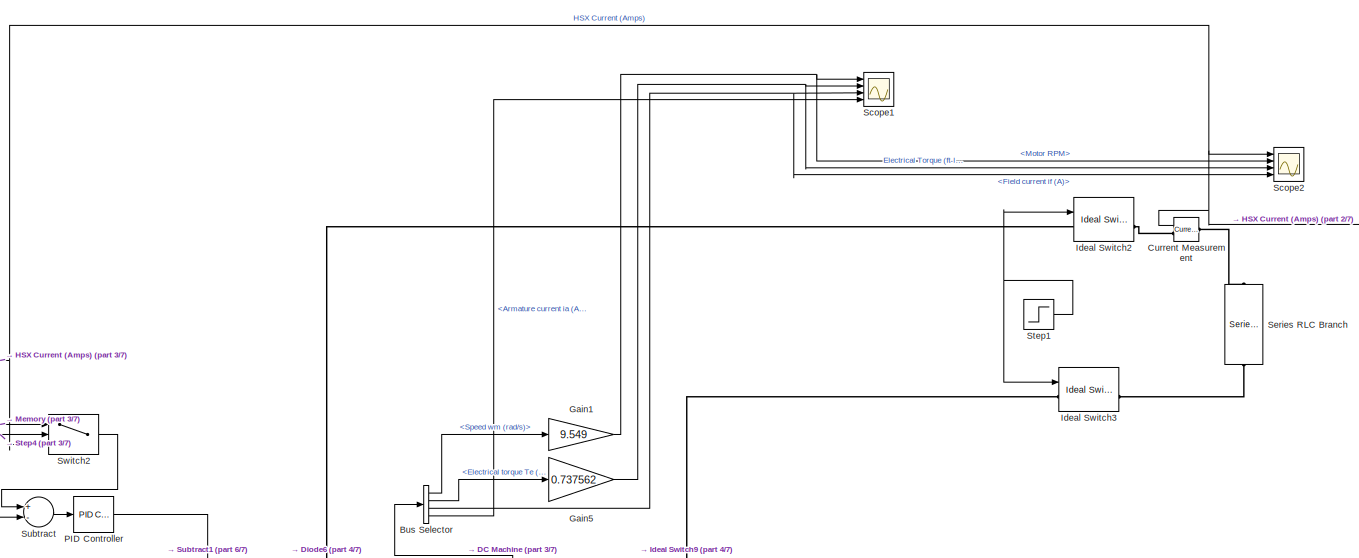
[diagram: root canvas - part 1/7, top center region]
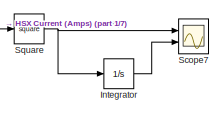
[diagram: root canvas - part 2/7, top right region]
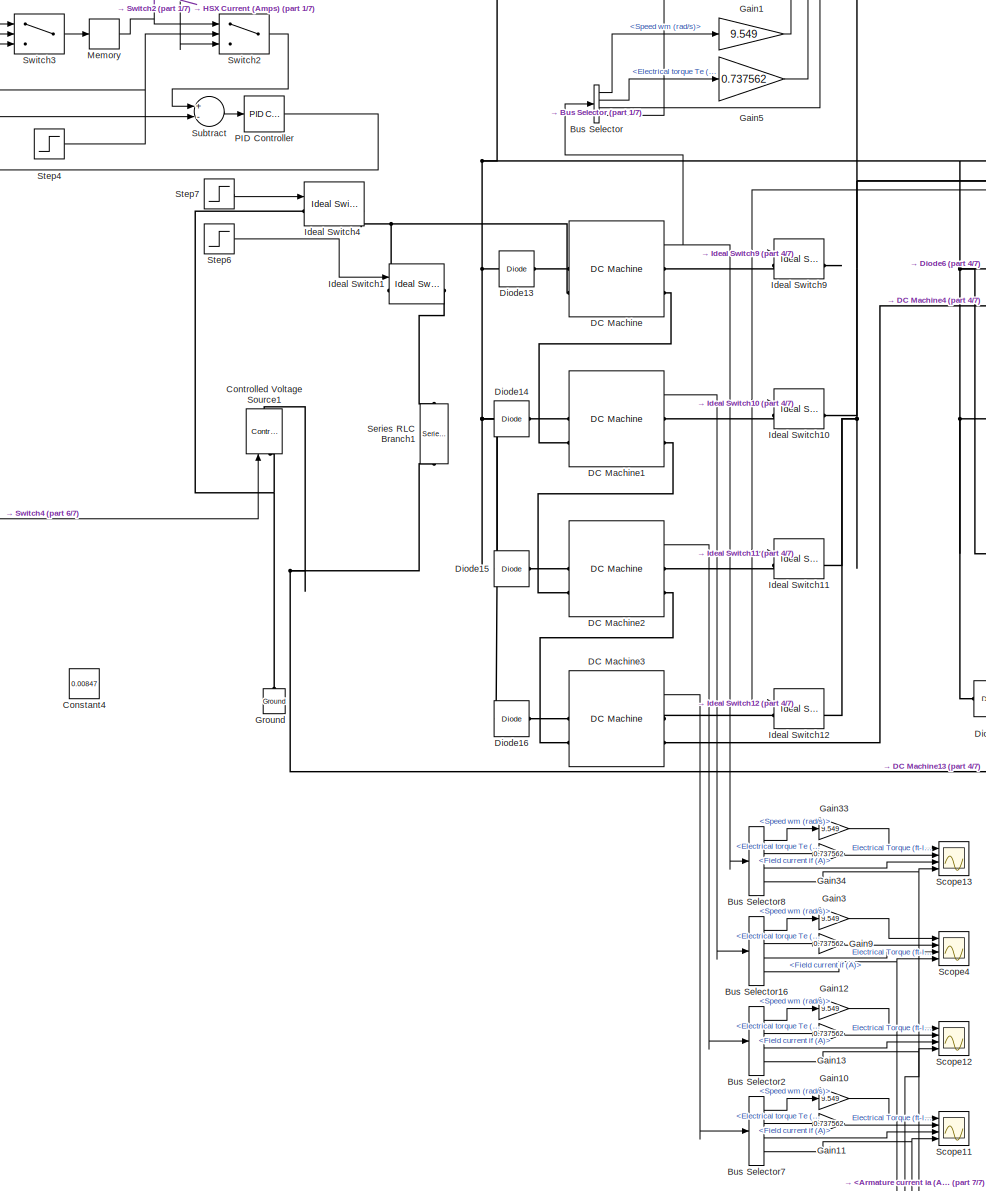
[diagram: root canvas - part 3/7, central region]
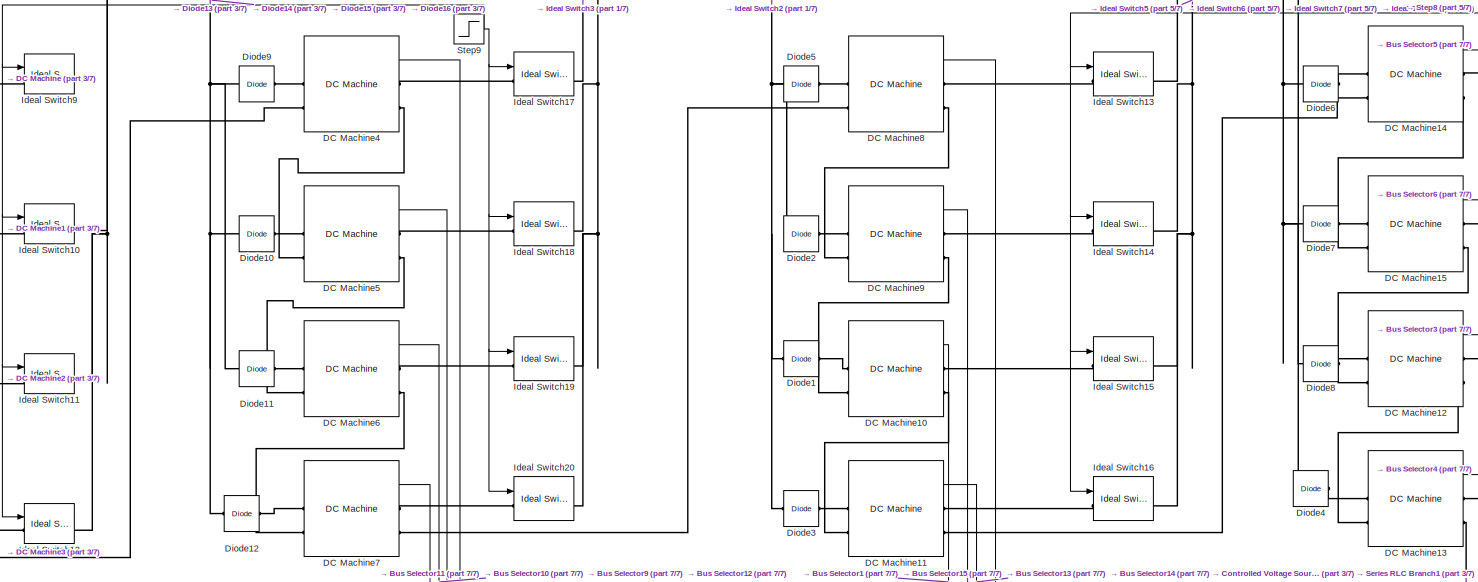
[diagram: root canvas - part 4/7, central region]
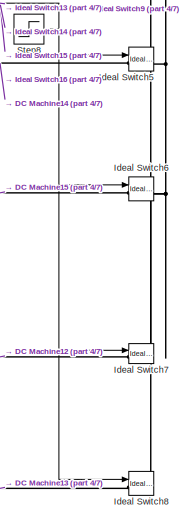
[diagram: root canvas - part 5/7, middle right region]
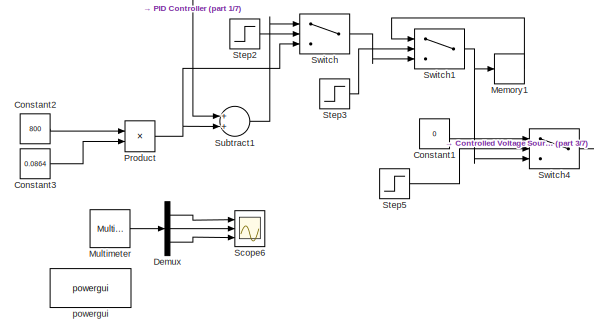
[diagram: root canvas - part 6/7, middle left region]
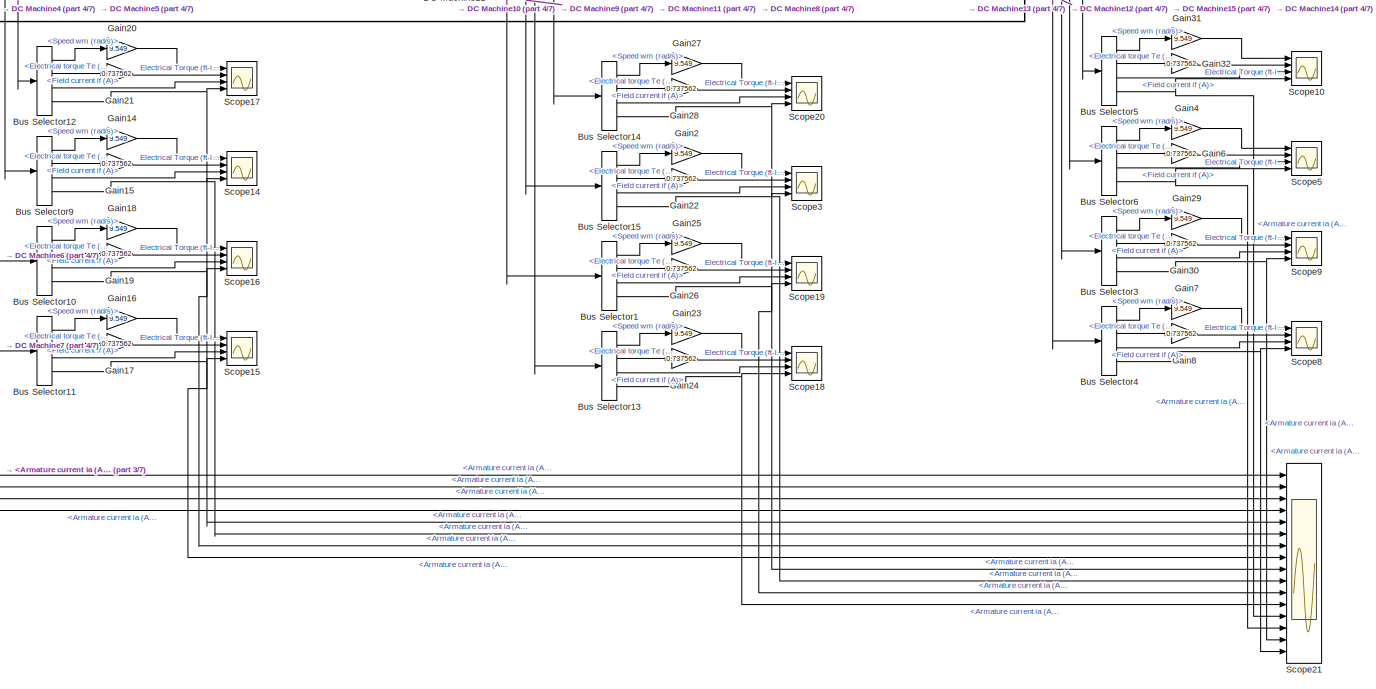
[diagram: root canvas - part 7/7, bottom right region]
MODEL slx_19354a791e89
KIND model
CONFIG AbsTol = auto
CONFIG EnableMultiTasking = off
CONFIG FixedStep = auto
CONFIG MaxStep = auto
CONFIG MinStep = auto
CONFIG RelTol = 1e-3
CONFIG SampleTimeConstraint = Unconstrained
CONFIG Solver = VariableStepAuto
CONFIG SolverName = VariableStepAuto
CONFIG StartTime = 0.0
CONFIG StopTime = 20
WORKSPACE source: mxarray member
WORKSPACE Laf = 0.00847
WORKSPACE Laf_2 = 0.00844
WORKSPACE Rarm = 0.0096
WORKSPACE angular_vel = 163.55
WORKSPACE angular_vel_1 = 175.405
WORKSPACE angular_vel_10 = 168.703
WORKSPACE angular_vel_11 = 168.598
WORKSPACE angular_vel_12 = 167.865
WORKSPACE angular_vel_13 = 167.132
WORKSPACE angular_vel_14 = 166.923
WORKSPACE angular_vel_15 = 165.666
WORKSPACE angular_vel_16 = 164.41
WORKSPACE angular_vel_2 = 173.625
WORKSPACE angular_vel_3 = 172.787
WORKSPACE angular_vel_4 = 170.902
WORKSPACE angular_vel_5 = 170.902
WORKSPACE angular_vel_6 = 169.96
WORKSPACE angular_vel_7 = 169.855
WORKSPACE angular_vel_8 = 169.122
BLOCK [BusSelector] Bus Selector
  OutputAsBus = off
  OutputSignals = Speed wm (rad/s),Electrical torque Te (n m),Field current if (A),Armature current ia (A)
  Ports = [1, 4]
BLOCK [BusSelector] Bus Selector1
  OutputAsBus = off
  OutputSignals = Speed wm (rad/s),Electrical torque Te (n m),Field current if (A),Armature current ia (A)
  Ports = [1, 4]
BLOCK [BusSelector] Bus Selector10
  OutputAsBus = off
  OutputSignals = Speed wm (rad/s),Electrical torque Te (n m),Field current if (A),Armature current ia (A)
  Ports = [1, 4]
BLOCK [BusSelector] Bus Selector11
  OutputAsBus = off
  OutputSignals = Speed wm (rad/s),Electrical torque Te (n m),Field current if (A),Armature current ia (A)
  Ports = [1, 4]
BLOCK [BusSelector] Bus Selector12
  OutputAsBus = off
  OutputSignals = Speed wm (rad/s),Electrical torque Te (n m),Field current if (A),Armature current ia (A)
  Ports = [1, 4]
BLOCK [BusSelector] Bus Selector13
  OutputAsBus = off
  OutputSignals = Speed wm (rad/s),Electrical torque Te (n m),Field current if (A),Armature current ia (A)
  Ports = [1, 4]
BLOCK [BusSelector] Bus Selector14
  OutputAsBus = off
  OutputSignals = Speed wm (rad/s),Electrical torque Te (n m),Field current if (A),Armature current ia (A)
  Ports = [1, 4]
BLOCK [BusSelector] Bus Selector15
  OutputAsBus = off
  OutputSignals = Speed wm (rad/s),Electrical torque Te (n m),Field current if (A),Armature current ia (A)
  Ports = [1, 4]
BLOCK [BusSelector] Bus Selector16
  OutputAsBus = off
  OutputSignals = Speed wm (rad/s),Electrical torque Te (n m),Field current if (A),Armature current ia (A)
  Ports = [1, 4]
BLOCK [BusSelector] Bus Selector2
  OutputAsBus = off
  OutputSignals = Speed wm (rad/s),Electrical torque Te (n m),Field current if (A),Armature current ia (A)
  Ports = [1, 4]
BLOCK [BusSelector] Bus Selector3
  OutputAsBus = off
  OutputSignals = Speed wm (rad/s),Electrical torque Te (n m),Field current if (A),Armature current ia (A)
  Ports = [1, 4]
BLOCK [BusSelector] Bus Selector4
  OutputAsBus = off
  OutputSignals = Speed wm (rad/s),Electrical torque Te (n m),Field current if (A),Armature current ia (A)
  Ports = [1, 4]
BLOCK [BusSelector] Bus Selector5
  OutputAsBus = off
  OutputSignals = Speed wm (rad/s),Electrical torque Te (n m),Field current if (A),Armature current ia (A)
  Ports = [1, 4]
BLOCK [BusSelector] Bus Selector6
  OutputAsBus = off
  OutputSignals = Speed wm (rad/s),Electrical torque Te (n m),Field current if (A),Armature current ia (A)
  Ports = [1, 4]
BLOCK [BusSelector] Bus Selector7
  OutputAsBus = off
  OutputSignals = Speed wm (rad/s),Electrical torque Te (n m),Field current if (A),Armature current ia (A)
  Ports = [1, 4]
BLOCK [BusSelector] Bus Selector8
  OutputAsBus = off
  OutputSignals = Speed wm (rad/s),Electrical torque Te (n m),Field current if (A),Armature current ia (A)
  Ports = [1, 4]
BLOCK [BusSelector] Bus Selector9
  OutputAsBus = off
  OutputSignals = Speed wm (rad/s),Electrical torque Te (n m),Field current if (A),Armature current ia (A)
  Ports = [1, 4]
BLOCK [Constant] Constant1
  Value = 0
BLOCK [Constant] Constant2
  Value = 800
BLOCK [Constant] Constant3
  Value = 0.0864
BLOCK [Constant] Constant4
  Value = 0.00847
BLOCK [Reference] Controlled Voltage Source1  REF=powerlib/Electrical
Sources/Controlled Voltage Source
  Ports = [1, 0, 0, 0, 0, 1, 1]
  SourceBlock = powerlib/Electrical\nSources/Controlled Voltage Source
  SourceProductBaseCode = PS
  SourceProductName = Simscape Electrical
  SourceType = Controlled Voltage Source
BLOCK [Reference] Current Measurement  REF=powerlib/Measurements/Current Measurement
  Ports = [0, 1, 0, 0, 0, 1, 1]
  SourceBlock = powerlib/Measurements/Current Measurement
  SourceProductBaseCode = PS
  SourceProductName = Simscape Electrical
  SourceType = Current Measurement
  UserDataPersistent = on
BLOCK [Reference] DC Machine  REF=powerlib/Machines/DC Machine
  Ports = [1, 1, 0, 0, 0, 2, 2]
  SourceBlock = powerlib/Machines/DC Machine
  SourceProductBaseCode = PS
  SourceProductName = Simscape Electrical
  SourceType = DC machine
BLOCK [Reference] DC Machine1  REF=powerlib/Machines/DC Machine
  Ports = [1, 1, 0, 0, 0, 2, 2]
  SourceBlock = powerlib/Machines/DC Machine
  SourceProductBaseCode = PS
  SourceProductName = Simscape Electrical
  SourceType = DC machine
BLOCK [Reference] DC Machine10  REF=powerlib/Machines/DC Machine
  Ports = [1, 1, 0, 0, 0, 2, 2]
  SourceBlock = powerlib/Machines/DC Machine
  SourceProductBaseCode = PS
  SourceProductName = Simscape Electrical
  SourceType = DC machine
BLOCK [Reference] DC Machine11  REF=powerlib/Machines/DC Machine
  Ports = [1, 1, 0, 0, 0, 2, 2]
  SourceBlock = powerlib/Machines/DC Machine
  SourceProductBaseCode = PS
  SourceProductName = Simscape Electrical
  SourceType = DC machine
BLOCK [Reference] DC Machine12  REF=powerlib/Machines/DC Machine
  Ports = [1, 1, 0, 0, 0, 2, 2]
  SourceBlock = powerlib/Machines/DC Machine
  SourceProductBaseCode = PS
  SourceProductName = Simscape Electrical
  SourceType = DC machine
BLOCK [Reference] DC Machine13  REF=powerlib/Machines/DC Machine
  Ports = [1, 1, 0, 0, 0, 2, 2]
  SourceBlock = powerlib/Machines/DC Machine
  SourceProductBaseCode = PS
  SourceProductName = Simscape Electrical
  SourceType = DC machine
BLOCK [Reference] DC Machine14  REF=powerlib/Machines/DC Machine
  Ports = [1, 1, 0, 0, 0, 2, 2]
  SourceBlock = powerlib/Machines/DC Machine
  SourceProductBaseCode = PS
  SourceProductName = Simscape Electrical
  SourceType = DC machine
BLOCK [Reference] DC Machine15  REF=powerlib/Machines/DC Machine
  Ports = [1, 1, 0, 0, 0, 2, 2]
  SourceBlock = powerlib/Machines/DC Machine
  SourceProductBaseCode = PS
  SourceProductName = Simscape Electrical
  SourceType = DC machine
BLOCK [Reference] DC Machine2  REF=powerlib/Machines/DC Machine
  Ports = [1, 1, 0, 0, 0, 2, 2]
  SourceBlock = powerlib/Machines/DC Machine
  SourceProductBaseCode = PS
  SourceProductName = Simscape Electrical
  SourceType = DC machine
BLOCK [Reference] DC Machine3  REF=powerlib/Machines/DC Machine
  Ports = [1, 1, 0, 0, 0, 2, 2]
  SourceBlock = powerlib/Machines/DC Machine
  SourceProductBaseCode = PS
  SourceProductName = Simscape Electrical
  SourceType = DC machine
BLOCK [Reference] DC Machine4  REF=powerlib/Machines/DC Machine
  Ports = [1, 1, 0, 0, 0, 2, 2]
  SourceBlock = powerlib/Machines/DC Machine
  SourceProductBaseCode = PS
  SourceProductName = Simscape Electrical
  SourceType = DC machine
BLOCK [Reference] DC Machine5  REF=powerlib/Machines/DC Machine
  Ports = [1, 1, 0, 0, 0, 2, 2]
  SourceBlock = powerlib/Machines/DC Machine
  SourceProductBaseCode = PS
  SourceProductName = Simscape Electrical
  SourceType = DC machine
BLOCK [Reference] DC Machine6  REF=powerlib/Machines/DC Machine
  Ports = [1, 1, 0, 0, 0, 2, 2]
  SourceBlock = powerlib/Machines/DC Machine
  SourceProductBaseCode = PS
  SourceProductName = Simscape Electrical
  SourceType = DC machine
BLOCK [Reference] DC Machine7  REF=powerlib/Machines/DC Machine
  Ports = [1, 1, 0, 0, 0, 2, 2]
  SourceBlock = powerlib/Machines/DC Machine
  SourceProductBaseCode = PS
  SourceProductName = Simscape Electrical
  SourceType = DC machine
BLOCK [Reference] DC Machine8  REF=powerlib/Machines/DC Machine
  Ports = [1, 1, 0, 0, 0, 2, 2]
  SourceBlock = powerlib/Machines/DC Machine
  SourceProductBaseCode = PS
  SourceProductName = Simscape Electrical
  SourceType = DC machine
BLOCK [Reference] DC Machine9  REF=powerlib/Machines/DC Machine
  Ports = [1, 1, 0, 0, 0, 2, 2]
  SourceBlock = powerlib/Machines/DC Machine
  SourceProductBaseCode = PS
  SourceProductName = Simscape Electrical
  SourceType = DC machine
BLOCK [Demux] Demux
  DisplayOption = bar
  Outputs = 3
  Ports = [1, 3]
BLOCK [Reference] Diode1  REF=powerlib/Power
Electronics/Diode
  Ports = [0, 0, 0, 0, 0, 1, 1]
  SourceBlock = powerlib/Power\nElectronics/Diode
  SourceProductBaseCode = PS
  SourceProductName = Simscape Electrical
  SourceType = Diode
BLOCK [Reference] Diode10  REF=powerlib/Power
Electronics/Diode
  Ports = [0, 0, 0, 0, 0, 1, 1]
  SourceBlock = powerlib/Power\nElectronics/Diode
  SourceProductBaseCode = PS
  SourceProductName = Simscape Electrical
  SourceType = Diode
BLOCK [Reference] Diode11  REF=powerlib/Power
Electronics/Diode
  Ports = [0, 0, 0, 0, 0, 1, 1]
  SourceBlock = powerlib/Power\nElectronics/Diode
  SourceProductBaseCode = PS
  SourceProductName = Simscape Electrical
  SourceType = Diode
BLOCK [Reference] Diode12  REF=powerlib/Power
Electronics/Diode
  Ports = [0, 0, 0, 0, 0, 1, 1]
  SourceBlock = powerlib/Power\nElectronics/Diode
  SourceProductBaseCode = PS
  SourceProductName = Simscape Electrical
  SourceType = Diode
BLOCK [Reference] Diode13  REF=powerlib/Power
Electronics/Diode
  Ports = [0, 0, 0, 0, 0, 1, 1]
  SourceBlock = powerlib/Power\nElectronics/Diode
  SourceProductBaseCode = PS
  SourceProductName = Simscape Electrical
  SourceType = Diode
BLOCK [Reference] Diode14  REF=powerlib/Power
Electronics/Diode
  Ports = [0, 0, 0, 0, 0, 1, 1]
  SourceBlock = powerlib/Power\nElectronics/Diode
  SourceProductBaseCode = PS
  SourceProductName = Simscape Electrical
  SourceType = Diode
BLOCK [Reference] Diode15  REF=powerlib/Power
Electronics/Diode
  Ports = [0, 0, 0, 0, 0, 1, 1]
  SourceBlock = powerlib/Power\nElectronics/Diode
  SourceProductBaseCode = PS
  SourceProductName = Simscape Electrical
  SourceType = Diode
BLOCK [Reference] Diode16  REF=powerlib/Power
Electronics/Diode
  Ports = [0, 0, 0, 0, 0, 1, 1]
  SourceBlock = powerlib/Power\nElectronics/Diode
  SourceProductBaseCode = PS
  SourceProductName = Simscape Electrical
  SourceType = Diode
BLOCK [Reference] Diode2  REF=powerlib/Power
Electronics/Diode
  Ports = [0, 0, 0, 0, 0, 1, 1]
  SourceBlock = powerlib/Power\nElectronics/Diode
  SourceProductBaseCode = PS
  SourceProductName = Simscape Electrical
  SourceType = Diode
BLOCK [Reference] Diode3  REF=powerlib/Power
Electronics/Diode
  Ports = [0, 0, 0, 0, 0, 1, 1]
  SourceBlock = powerlib/Power\nElectronics/Diode
  SourceProductBaseCode = PS
  SourceProductName = Simscape Electrical
  SourceType = Diode
BLOCK [Reference] Diode4  REF=powerlib/Power
Electronics/Diode
  Ports = [0, 0, 0, 0, 0, 1, 1]
  SourceBlock = powerlib/Power\nElectronics/Diode
  SourceProductBaseCode = PS
  SourceProductName = Simscape Electrical
  SourceType = Diode
BLOCK [Reference] Diode5  REF=powerlib/Power
Electronics/Diode
  Ports = [0, 0, 0, 0, 0, 1, 1]
  SourceBlock = powerlib/Power\nElectronics/Diode
  SourceProductBaseCode = PS
  SourceProductName = Simscape Electrical
  SourceType = Diode
BLOCK [Reference] Diode6  REF=powerlib/Power
Electronics/Diode
  Ports = [0, 0, 0, 0, 0, 1, 1]
  SourceBlock = powerlib/Power\nElectronics/Diode
  SourceProductBaseCode = PS
  SourceProductName = Simscape Electrical
  SourceType = Diode
BLOCK [Reference] Diode7  REF=powerlib/Power
Electronics/Diode
  Ports = [0, 0, 0, 0, 0, 1, 1]
  SourceBlock = powerlib/Power\nElectronics/Diode
  SourceProductBaseCode = PS
  SourceProductName = Simscape Electrical
  SourceType = Diode
BLOCK [Reference] Diode8  REF=powerlib/Power
Electronics/Diode
  Ports = [0, 0, 0, 0, 0, 1, 1]
  SourceBlock = powerlib/Power\nElectronics/Diode
  SourceProductBaseCode = PS
  SourceProductName = Simscape Electrical
  SourceType = Diode
BLOCK [Reference] Diode9  REF=powerlib/Power
Electronics/Diode
  Ports = [0, 0, 0, 0, 0, 1, 1]
  SourceBlock = powerlib/Power\nElectronics/Diode
  SourceProductBaseCode = PS
  SourceProductName = Simscape Electrical
  SourceType = Diode
BLOCK [Gain] Gain1
  Gain = 9.549
  OutDataTypeStr = Inherit: Inherit via internal rule
  ParamDataTypeStr = Inherit: Inherit via internal rule
  SaturateOnIntegerOverflow = off
BLOCK [Gain] Gain10
  Gain = 9.549
  OutDataTypeStr = Inherit: Inherit via internal rule
  ParamDataTypeStr = Inherit: Inherit via internal rule
  SaturateOnIntegerOverflow = off
BLOCK [Gain] Gain11
  Gain = 0.737562
  OutDataTypeStr = Inherit: Inherit via internal rule
  ParamDataTypeStr = Inherit: Inherit via internal rule
  SaturateOnIntegerOverflow = off
BLOCK [Gain] Gain12
  Gain = 9.549
  OutDataTypeStr = Inherit: Inherit via internal rule
  ParamDataTypeStr = Inherit: Inherit via internal rule
  SaturateOnIntegerOverflow = off
BLOCK [Gain] Gain13
  Gain = 0.737562
  OutDataTypeStr = Inherit: Inherit via internal rule
  ParamDataTypeStr = Inherit: Inherit via internal rule
  SaturateOnIntegerOverflow = off
BLOCK [Gain] Gain14
  Gain = 9.549
  OutDataTypeStr = Inherit: Inherit via internal rule
  ParamDataTypeStr = Inherit: Inherit via internal rule
  SaturateOnIntegerOverflow = off
BLOCK [Gain] Gain15
  Gain = 0.737562
  OutDataTypeStr = Inherit: Inherit via internal rule
  ParamDataTypeStr = Inherit: Inherit via internal rule
  SaturateOnIntegerOverflow = off
BLOCK [Gain] Gain16
  Gain = 9.549
  OutDataTypeStr = Inherit: Inherit via internal rule
  ParamDataTypeStr = Inherit: Inherit via internal rule
  SaturateOnIntegerOverflow = off
BLOCK [Gain] Gain17
  Gain = 0.737562
  OutDataTypeStr = Inherit: Inherit via internal rule
  ParamDataTypeStr = Inherit: Inherit via internal rule
  SaturateOnIntegerOverflow = off
BLOCK [Gain] Gain18
  Gain = 9.549
  OutDataTypeStr = Inherit: Inherit via internal rule
  ParamDataTypeStr = Inherit: Inherit via internal rule
  SaturateOnIntegerOverflow = off
BLOCK [Gain] Gain19
  Gain = 0.737562
  OutDataTypeStr = Inherit: Inherit via internal rule
  ParamDataTypeStr = Inherit: Inherit via internal rule
  SaturateOnIntegerOverflow = off
BLOCK [Gain] Gain2
  Gain = 9.549
  OutDataTypeStr = Inherit: Inherit via internal rule
  ParamDataTypeStr = Inherit: Inherit via internal rule
  SaturateOnIntegerOverflow = off
BLOCK [Gain] Gain20
  Gain = 9.549
  OutDataTypeStr = Inherit: Inherit via internal rule
  ParamDataTypeStr = Inherit: Inherit via internal rule
  SaturateOnIntegerOverflow = off
BLOCK [Gain] Gain21
  Gain = 0.737562
  OutDataTypeStr = Inherit: Inherit via internal rule
  ParamDataTypeStr = Inherit: Inherit via internal rule
  SaturateOnIntegerOverflow = off
BLOCK [Gain] Gain22
  Gain = 0.737562
  OutDataTypeStr = Inherit: Inherit via internal rule
  ParamDataTypeStr = Inherit: Inherit via internal rule
  SaturateOnIntegerOverflow = off
BLOCK [Gain] Gain23
  Gain = 9.549
  OutDataTypeStr = Inherit: Inherit via internal rule
  ParamDataTypeStr = Inherit: Inherit via internal rule
  SaturateOnIntegerOverflow = off
BLOCK [Gain] Gain24
  Gain = 0.737562
  OutDataTypeStr = Inherit: Inherit via internal rule
  ParamDataTypeStr = Inherit: Inherit via internal rule
  SaturateOnIntegerOverflow = off
BLOCK [Gain] Gain25
  Gain = 9.549
  OutDataTypeStr = Inherit: Inherit via internal rule
  ParamDataTypeStr = Inherit: Inherit via internal rule
  SaturateOnIntegerOverflow = off
BLOCK [Gain] Gain26
  Gain = 0.737562
  OutDataTypeStr = Inherit: Inherit via internal rule
  ParamDataTypeStr = Inherit: Inherit via internal rule
  SaturateOnIntegerOverflow = off
BLOCK [Gain] Gain27
  Gain = 9.549
  OutDataTypeStr = Inherit: Inherit via internal rule
  ParamDataTypeStr = Inherit: Inherit via internal rule
  SaturateOnIntegerOverflow = off
BLOCK [Gain] Gain28
  Gain = 0.737562
  OutDataTypeStr = Inherit: Inherit via internal rule
  ParamDataTypeStr = Inherit: Inherit via internal rule
  SaturateOnIntegerOverflow = off
BLOCK [Gain] Gain29
  Gain = 9.549
  OutDataTypeStr = Inherit: Inherit via internal rule
  ParamDataTypeStr = Inherit: Inherit via internal rule
  SaturateOnIntegerOverflow = off
BLOCK [Gain] Gain3
  Gain = 9.549
  OutDataTypeStr = Inherit: Inherit via internal rule
  ParamDataTypeStr = Inherit: Inherit via internal rule
  SaturateOnIntegerOverflow = off
BLOCK [Gain] Gain30
  Gain = 0.737562
  OutDataTypeStr = Inherit: Inherit via internal rule
  ParamDataTypeStr = Inherit: Inherit via internal rule
  SaturateOnIntegerOverflow = off
BLOCK [Gain] Gain31
  Gain = 9.549
  OutDataTypeStr = Inherit: Inherit via internal rule
  ParamDataTypeStr = Inherit: Inherit via internal rule
  SaturateOnIntegerOverflow = off
BLOCK [Gain] Gain32
  Gain = 0.737562
  OutDataTypeStr = Inherit: Inherit via internal rule
  ParamDataTypeStr = Inherit: Inherit via internal rule
  SaturateOnIntegerOverflow = off
BLOCK [Gain] Gain33
  Gain = 9.549
  OutDataTypeStr = Inherit: Inherit via internal rule
  ParamDataTypeStr = Inherit: Inherit via internal rule
  SaturateOnIntegerOverflow = off
BLOCK [Gain] Gain34
  Gain = 0.737562
  OutDataTypeStr = Inherit: Inherit via internal rule
  ParamDataTypeStr = Inherit: Inherit via internal rule
  SaturateOnIntegerOverflow = off
BLOCK [Gain] Gain4
  Gain = 9.549
  OutDataTypeStr = Inherit: Inherit via internal rule
  ParamDataTypeStr = Inherit: Inherit via internal rule
  SaturateOnIntegerOverflow = off
BLOCK [Gain] Gain5
  Gain = 0.737562
  OutDataTypeStr = Inherit: Inherit via internal rule
  ParamDataTypeStr = Inherit: Inherit via internal rule
  SaturateOnIntegerOverflow = off
BLOCK [Gain] Gain6
  Gain = 0.737562
  OutDataTypeStr = Inherit: Inherit via internal rule
  ParamDataTypeStr = Inherit: Inherit via internal rule
  SaturateOnIntegerOverflow = off
BLOCK [Gain] Gain7
  Gain = 9.549
  OutDataTypeStr = Inherit: Inherit via internal rule
  ParamDataTypeStr = Inherit: Inherit via internal rule
  SaturateOnIntegerOverflow = off
BLOCK [Gain] Gain8
  Gain = 0.737562
  OutDataTypeStr = Inherit: Inherit via internal rule
  ParamDataTypeStr = Inherit: Inherit via internal rule
  SaturateOnIntegerOverflow = off
BLOCK [Gain] Gain9
  Gain = 0.737562
  OutDataTypeStr = Inherit: Inherit via internal rule
  ParamDataTypeStr = Inherit: Inherit via internal rule
  SaturateOnIntegerOverflow = off
BLOCK [Reference] Ground  REF=powerlib/Elements/Ground
  Ports = [0, 0, 0, 0, 0, 1]
  SourceBlock = powerlib/Elements/Ground
  SourceProductBaseCode = PS
  SourceProductName = Simscape Electrical
  SourceType = Ground
BLOCK [Reference] Ideal Switch1  REF=powerlib/Power
Electronics/Ideal Switch
  Ports = [1, 1, 0, 0, 0, 1, 1]
  SourceBlock = powerlib/Power\nElectronics/Ideal Switch
  SourceProductBaseCode = PS
  SourceProductName = Simscape Electrical
  SourceType = Ideal Switch
BLOCK [Reference] Ideal Switch10  REF=powerlib/Power
Electronics/Ideal Switch
  Ports = [1, 1, 0, 0, 0, 1, 1]
  SourceBlock = powerlib/Power\nElectronics/Ideal Switch
  SourceProductBaseCode = PS
  SourceProductName = Simscape Electrical
  SourceType = Ideal Switch
BLOCK [Reference] Ideal Switch11  REF=powerlib/Power
Electronics/Ideal Switch
  Ports = [1, 1, 0, 0, 0, 1, 1]
  SourceBlock = powerlib/Power\nElectronics/Ideal Switch
  SourceProductBaseCode = PS
  SourceProductName = Simscape Electrical
  SourceType = Ideal Switch
BLOCK [Reference] Ideal Switch12  REF=powerlib/Power
Electronics/Ideal Switch
  Ports = [1, 1, 0, 0, 0, 1, 1]
  SourceBlock = powerlib/Power\nElectronics/Ideal Switch
  SourceProductBaseCode = PS
  SourceProductName = Simscape Electrical
  SourceType = Ideal Switch
BLOCK [Reference] Ideal Switch13  REF=powerlib/Power
Electronics/Ideal Switch
  Ports = [1, 1, 0, 0, 0, 1, 1]
  SourceBlock = powerlib/Power\nElectronics/Ideal Switch
  SourceProductBaseCode = PS
  SourceProductName = Simscape Electrical
  SourceType = Ideal Switch
BLOCK [Reference] Ideal Switch14  REF=powerlib/Power
Electronics/Ideal Switch
  Ports = [1, 1, 0, 0, 0, 1, 1]
  SourceBlock = powerlib/Power\nElectronics/Ideal Switch
  SourceProductBaseCode = PS
  SourceProductName = Simscape Electrical
  SourceType = Ideal Switch
BLOCK [Reference] Ideal Switch15  REF=powerlib/Power
Electronics/Ideal Switch
  Ports = [1, 1, 0, 0, 0, 1, 1]
  SourceBlock = powerlib/Power\nElectronics/Ideal Switch
  SourceProductBaseCode = PS
  SourceProductName = Simscape Electrical
  SourceType = Ideal Switch
BLOCK [Reference] Ideal Switch16  REF=powerlib/Power
Electronics/Ideal Switch
  Ports = [1, 1, 0, 0, 0, 1, 1]
  SourceBlock = powerlib/Power\nElectronics/Ideal Switch
  SourceProductBaseCode = PS
  SourceProductName = Simscape Electrical
  SourceType = Ideal Switch
BLOCK [Reference] Ideal Switch17  REF=powerlib/Power
Electronics/Ideal Switch
  Ports = [1, 1, 0, 0, 0, 1, 1]
  SourceBlock = powerlib/Power\nElectronics/Ideal Switch
  SourceProductBaseCode = PS
  SourceProductName = Simscape Electrical
  SourceType = Ideal Switch
BLOCK [Reference] Ideal Switch18  REF=powerlib/Power
Electronics/Ideal Switch
  Ports = [1, 1, 0, 0, 0, 1, 1]
  SourceBlock = powerlib/Power\nElectronics/Ideal Switch
  SourceProductBaseCode = PS
  SourceProductName = Simscape Electrical
  SourceType = Ideal Switch
BLOCK [Reference] Ideal Switch19  REF=powerlib/Power
Electronics/Ideal Switch
  Ports = [1, 1, 0, 0, 0, 1, 1]
  SourceBlock = powerlib/Power\nElectronics/Ideal Switch
  SourceProductBaseCode = PS
  SourceProductName = Simscape Electrical
  SourceType = Ideal Switch
BLOCK [Reference] Ideal Switch2  REF=powerlib/Power
Electronics/Ideal Switch
  Ports = [1, 1, 0, 0, 0, 1, 1]
  SourceBlock = powerlib/Power\nElectronics/Ideal Switch
  SourceProductBaseCode = PS
  SourceProductName = Simscape Electrical
  SourceType = Ideal Switch
BLOCK [Reference] Ideal Switch20  REF=powerlib/Power
Electronics/Ideal Switch
  Ports = [1, 1, 0, 0, 0, 1, 1]
  SourceBlock = powerlib/Power\nElectronics/Ideal Switch
  SourceProductBaseCode = PS
  SourceProductName = Simscape Electrical
  SourceType = Ideal Switch
BLOCK [Reference] Ideal Switch3  REF=powerlib/Power
Electronics/Ideal Switch
  Ports = [1, 1, 0, 0, 0, 1, 1]
  SourceBlock = powerlib/Power\nElectronics/Ideal Switch
  SourceProductBaseCode = PS
  SourceProductName = Simscape Electrical
  SourceType = Ideal Switch
BLOCK [Reference] Ideal Switch4  REF=powerlib/Power
Electronics/Ideal Switch
  Ports = [1, 1, 0, 0, 0, 1, 1]
  SourceBlock = powerlib/Power\nElectronics/Ideal Switch
  SourceProductBaseCode = PS
  SourceProductName = Simscape Electrical
  SourceType = Ideal Switch
BLOCK [Reference] Ideal Switch5  REF=powerlib/Power
Electronics/Ideal Switch
  Ports = [1, 1, 0, 0, 0, 1, 1]
  SourceBlock = powerlib/Power\nElectronics/Ideal Switch
  SourceProductBaseCode = PS
  SourceProductName = Simscape Electrical
  SourceType = Ideal Switch
BLOCK [Reference] Ideal Switch6  REF=powerlib/Power
Electronics/Ideal Switch
  Ports = [1, 1, 0, 0, 0, 1, 1]
  SourceBlock = powerlib/Power\nElectronics/Ideal Switch
  SourceProductBaseCode = PS
  SourceProductName = Simscape Electrical
  SourceType = Ideal Switch
BLOCK [Reference] Ideal Switch7  REF=powerlib/Power
Electronics/Ideal Switch
  Ports = [1, 1, 0, 0, 0, 1, 1]
  SourceBlock = powerlib/Power\nElectronics/Ideal Switch
  SourceProductBaseCode = PS
  SourceProductName = Simscape Electrical
  SourceType = Ideal Switch
BLOCK [Reference] Ideal Switch8  REF=powerlib/Power
Electronics/Ideal Switch
  Ports = [1, 1, 0, 0, 0, 1, 1]
  SourceBlock = powerlib/Power\nElectronics/Ideal Switch
  SourceProductBaseCode = PS
  SourceProductName = Simscape Electrical
  SourceType = Ideal Switch
BLOCK [Reference] Ideal Switch9  REF=powerlib/Power
Electronics/Ideal Switch
  Ports = [1, 1, 0, 0, 0, 1, 1]
  SourceBlock = powerlib/Power\nElectronics/Ideal Switch
  SourceProductBaseCode = PS
  SourceProductName = Simscape Electrical
  SourceType = Ideal Switch
BLOCK [Integrator] Integrator
  Ports = [1, 1]
  ZeroCross = off
BLOCK [Memory] Memory
BLOCK [Memory] Memory1
BLOCK [Reference] Multimeter  REF=powerlib/Measurements/Multimeter
  Ports = [0, 1]
  SourceBlock = powerlib/Measurements/Multimeter
  SourceProductBaseCode = PS
  SourceProductName = Simscape Electrical
  SourceType = MultimeterPSB
BLOCK [Reference] PID Controller  REF=simulink/Continuous/PID Controller
  Ports = [1, 1]
  SourceBlock = simulink/Continuous/PID Controller
  SourceProductBaseCode = SL
  SourceProductName = Simulink
  SourceType = PID 1dof
BLOCK [Product] Product
  InputSameDT = off
  OutDataTypeStr = Inherit: Inherit via internal rule
  Ports = [2, 1]
  RndMeth = Floor
  SaturateOnIntegerOverflow = off
BLOCK [Scope] Scope1
  Floating = off
  NumInputPorts = 4
  Ports = [4]
  ScopeSpecificationString = Simulink.scopes.TimeScopeBlockCfg('CurrentConfiguration', extmgr.ConfigurationSet(extmgr.Configuration('Core','General UI',true,'FigureColor',[0 0 0]),extmgr.Configuration('Core','Source UI',true),extmgr.Configuration('Sources','WiredSimulink',true,'DataLoggingVariableName','ScopeData1'),extmgr.Configuration('Visuals','Time Domain',true,'SerializedDisplays',{struct('MinYLimReal','1663.51559','MaxY...<+3526ch>
BLOCK [Scope] Scope10
  Floating = off
  NumInputPorts = 4
  Ports = [4]
  ScopeSpecificationString = Simulink.scopes.TimeScopeBlockCfg('CurrentConfiguration', extmgr.ConfigurationSet(extmgr.Configuration('Core','General UI',true),extmgr.Configuration('Core','Source UI',true),extmgr.Configuration('Sources','WiredSimulink',true,'DataLoggingVariableName','ScopeData12'),extmgr.Configuration('Visuals','Time Domain',true,'SerializedDisplays',{struct('MinYLimReal','1295.44142','MaxYLimReal','1645.96906'...<+3507ch>
BLOCK [Scope] Scope11
  Floating = off
  NumInputPorts = 4
  Ports = [4]
  ScopeSpecificationString = Simulink.scopes.TimeScopeBlockCfg('CurrentConfiguration', extmgr.ConfigurationSet(extmgr.Configuration('Core','General UI',true),extmgr.Configuration('Core','Source UI',true),extmgr.Configuration('Sources','WiredSimulink',true,'DataLoggingVariableName','ScopeData1'),extmgr.Configuration('Visuals','Time Domain',true,'SerializedDisplays',{struct('MinYLimReal','1295.44142','MaxYLimReal','1645.96906',...<+3506ch>
BLOCK [Scope] Scope12
  Floating = off
  NumInputPorts = 4
  Ports = [4]
  ScopeSpecificationString = Simulink.scopes.TimeScopeBlockCfg('CurrentConfiguration', extmgr.ConfigurationSet(extmgr.Configuration('Core','General UI',true),extmgr.Configuration('Core','Source UI',true),extmgr.Configuration('Sources','WiredSimulink',true,'DataLoggingVariableName','ScopeData2'),extmgr.Configuration('Visuals','Time Domain',true,'SerializedDisplays',{struct('MinYLimReal','1295.44142','MaxYLimReal','1645.96906',...<+3506ch>
BLOCK [Scope] Scope13
  Floating = off
  NumInputPorts = 4
  Ports = [4]
  ScopeSpecificationString = Simulink.scopes.TimeScopeBlockCfg('CurrentConfiguration', extmgr.ConfigurationSet(extmgr.Configuration('Core','General UI',true),extmgr.Configuration('Core','Source UI',true),extmgr.Configuration('Sources','WiredSimulink',true,'DataLoggingVariableName','ScopeData3'),extmgr.Configuration('Visuals','Time Domain',true,'SerializedDisplays',{struct('MinYLimReal','1295.44142','MaxYLimReal','1645.96906',...<+3504ch>
BLOCK [Scope] Scope14
  Floating = off
  NumInputPorts = 4
  Ports = [4]
  ScopeSpecificationString = Simulink.scopes.TimeScopeBlockCfg('CurrentConfiguration', extmgr.ConfigurationSet(extmgr.Configuration('Core','General UI',true),extmgr.Configuration('Core','Source UI',true),extmgr.Configuration('Sources','WiredSimulink',true,'DataLoggingVariableName','ScopeData4'),extmgr.Configuration('Visuals','Time Domain',true,'SerializedDisplays',{struct('MinYLimReal','1295.44142','MaxYLimReal','1645.96906',...<+3506ch>
BLOCK [Scope] Scope15
  Floating = off
  NumInputPorts = 4
  Ports = [4]
  ScopeSpecificationString = Simulink.scopes.TimeScopeBlockCfg('CurrentConfiguration', extmgr.ConfigurationSet(extmgr.Configuration('Core','General UI',true),extmgr.Configuration('Core','Source UI',true),extmgr.Configuration('Sources','WiredSimulink',true,'DataLoggingVariableName','ScopeData5'),extmgr.Configuration('Visuals','Time Domain',true,'SerializedDisplays',{struct('MinYLimReal','1295.44142','MaxYLimReal','1645.96906',...<+3506ch>
BLOCK [Scope] Scope16
  Floating = off
  NumInputPorts = 4
  Ports = [4]
  ScopeSpecificationString = Simulink.scopes.TimeScopeBlockCfg('CurrentConfiguration', extmgr.ConfigurationSet(extmgr.Configuration('Core','General UI',true),extmgr.Configuration('Core','Source UI',true),extmgr.Configuration('Sources','WiredSimulink',true,'DataLoggingVariableName','ScopeData6'),extmgr.Configuration('Visuals','Time Domain',true,'SerializedDisplays',{struct('MinYLimReal','1295.44142','MaxYLimReal','1645.96906',...<+3506ch>
BLOCK [Scope] Scope17
  Floating = off
  NumInputPorts = 4
  Ports = [4]
  ScopeSpecificationString = Simulink.scopes.TimeScopeBlockCfg('CurrentConfiguration', extmgr.ConfigurationSet(extmgr.Configuration('Core','General UI',true),extmgr.Configuration('Core','Source UI',true),extmgr.Configuration('Sources','WiredSimulink',true,'DataLoggingVariableName','ScopeData7'),extmgr.Configuration('Visuals','Time Domain',true,'SerializedDisplays',{struct('MinYLimReal','1295.44142','MaxYLimReal','1645.96906',...<+3506ch>
BLOCK [Scope] Scope18
  Floating = off
  NumInputPorts = 4
  Ports = [4]
  ScopeSpecificationString = Simulink.scopes.TimeScopeBlockCfg('CurrentConfiguration', extmgr.ConfigurationSet(extmgr.Configuration('Core','General UI',true),extmgr.Configuration('Core','Source UI',true),extmgr.Configuration('Sources','WiredSimulink',true,'DataLoggingVariableName','ScopeData8'),extmgr.Configuration('Visuals','Time Domain',true,'SerializedDisplays',{struct('MinYLimReal','1295.44142','MaxYLimReal','1645.96906',...<+3506ch>
BLOCK [Scope] Scope19
  Floating = off
  NumInputPorts = 4
  Ports = [4]
  ScopeSpecificationString = Simulink.scopes.TimeScopeBlockCfg('CurrentConfiguration', extmgr.ConfigurationSet(extmgr.Configuration('Core','General UI',true),extmgr.Configuration('Core','Source UI',true),extmgr.Configuration('Sources','WiredSimulink',true,'DataLoggingVariableName','ScopeData9'),extmgr.Configuration('Visuals','Time Domain',true,'SerializedDisplays',{struct('MinYLimReal','1295.44142','MaxYLimReal','1645.96906',...<+3506ch>
BLOCK [Scope] Scope2
  Floating = off
  NumInputPorts = 4
  Ports = [4]
  ScopeSpecificationString = Simulink.scopes.TimeScopeBlockCfg('CurrentConfiguration', extmgr.ConfigurationSet(extmgr.Configuration('Core','General UI',true),extmgr.Configuration('Core','Source UI',true),extmgr.Configuration('Sources','WiredSimulink',true,'DataLoggingVariableName','ScopeData1','SampleTime','0.005'),extmgr.Configuration('Visuals','Time Domain',true,'SerializedDisplays',{struct('MinYLimReal','-1400.20543','MaxY...<+3780ch>
BLOCK [Scope] Scope20
  Floating = off
  NumInputPorts = 4
  Ports = [4]
  ScopeSpecificationString = Simulink.scopes.TimeScopeBlockCfg('CurrentConfiguration', extmgr.ConfigurationSet(extmgr.Configuration('Core','General UI',true),extmgr.Configuration('Core','Source UI',true),extmgr.Configuration('Sources','WiredSimulink',true,'DataLoggingVariableName','ScopeData10'),extmgr.Configuration('Visuals','Time Domain',true,'SerializedDisplays',{struct('MinYLimReal','1288.70301','MaxYLimReal','1645.55068'...<+3505ch>
BLOCK [Scope] Scope21
  Floating = off
  NumInputPorts = 16
  Ports = [16]
  ScopeSpecificationString = Simulink.scopes.TimeScopeBlockCfg('CurrentConfiguration', extmgr.ConfigurationSet(extmgr.Configuration('Core','General UI',true),extmgr.Configuration('Core','Source UI',true),extmgr.Configuration('Sources','WiredSimulink',true,'DataLoggingVariableName','ScopeData17'),extmgr.Configuration('Visuals','Time Domain',true,'SerializedDisplays',{struct('MinYLimReal','-173.84059','MaxYLimReal','1494.08934'...<+12324ch>
BLOCK [Scope] Scope3
  Floating = off
  NumInputPorts = 4
  Ports = [4]
  ScopeSpecificationString = Simulink.scopes.TimeScopeBlockCfg('CurrentConfiguration', extmgr.ConfigurationSet(extmgr.Configuration('Core','General UI',true),extmgr.Configuration('Core','Source UI',true),extmgr.Configuration('Sources','WiredSimulink',true,'DataLoggingVariableName','ScopeData11'),extmgr.Configuration('Visuals','Time Domain',true,'SerializedDisplays',{struct('MinYLimReal','1295.44142','MaxYLimReal','1645.96906'...<+3507ch>
BLOCK [Scope] Scope4
  Floating = off
  NumInputPorts = 4
  Ports = [4]
  ScopeSpecificationString = Simulink.scopes.TimeScopeBlockCfg('CurrentConfiguration', extmgr.ConfigurationSet(extmgr.Configuration('Core','General UI',true),extmgr.Configuration('Core','Source UI',true),extmgr.Configuration('Sources','WiredSimulink',true,'DataLoggingVariableName','ScopeData16'),extmgr.Configuration('Visuals','Time Domain',true,'SerializedDisplays',{struct('MinYLimReal','1286.10667','MaxYLimReal','1699.26051'...<+3505ch>
BLOCK [Scope] Scope5
  Floating = off
  NumInputPorts = 4
  Ports = [4]
  ScopeSpecificationString = Simulink.scopes.TimeScopeBlockCfg('CurrentConfiguration', extmgr.ConfigurationSet(extmgr.Configuration('Core','General UI',true),extmgr.Configuration('Core','Source UI',true),extmgr.Configuration('Sources','WiredSimulink',true,'DataLoggingVariableName','ScopeData13'),extmgr.Configuration('Visuals','Time Domain',true,'SerializedDisplays',{struct('MinYLimReal','1295.44142','MaxYLimReal','1645.96906'...<+3507ch>
BLOCK [Scope] Scope6
  Floating = off
  NumInputPorts = 3
  Ports = [3]
  ScopeSpecificationString = Simulink.scopes.TimeScopeBlockCfg('CurrentConfiguration', extmgr.ConfigurationSet(extmgr.Configuration('Core','General UI',true,'FigureColor',[0 0 0]),extmgr.Configuration('Core','Source UI',true),extmgr.Configuration('Sources','WiredSimulink',true,'DataLoggingVariableName','ScopeData1','SampleTime','0.001'),extmgr.Configuration('Visuals','Time Domain',true,'SerializedDisplays',{struct('MinYLimRea...<+2888ch>
BLOCK [Scope] Scope7
  Floating = off
  NumInputPorts = 2
  Ports = [2]
  ScopeSpecificationString = Simulink.scopes.TimeScopeBlockCfg('CurrentConfiguration', extmgr.ConfigurationSet(extmgr.Configuration('Core','General UI',true),extmgr.Configuration('Core','Source UI',true),extmgr.Configuration('Sources','WiredSimulink',true,'DataLoggingVariableName','ScopeData1','SampleTime','0.005'),extmgr.Configuration('Visuals','Time Domain',true,'SerializedDisplays',{struct('MinYLimReal','-15786607.27137','...<+2330ch>
BLOCK [Scope] Scope8
  Floating = off
  NumInputPorts = 4
  Ports = [4]
  ScopeSpecificationString = Simulink.scopes.TimeScopeBlockCfg('CurrentConfiguration', extmgr.ConfigurationSet(extmgr.Configuration('Core','General UI',true),extmgr.Configuration('Core','Source UI',true),extmgr.Configuration('Sources','WiredSimulink',true,'DataLoggingVariableName','ScopeData14'),extmgr.Configuration('Visuals','Time Domain',true,'SerializedDisplays',{struct('MinYLimReal','1295.44142','MaxYLimReal','1645.96906'...<+3504ch>
BLOCK [Scope] Scope9
  Floating = off
  NumInputPorts = 4
  Ports = [4]
  ScopeSpecificationString = Simulink.scopes.TimeScopeBlockCfg('CurrentConfiguration', extmgr.ConfigurationSet(extmgr.Configuration('Core','General UI',true),extmgr.Configuration('Core','Source UI',true),extmgr.Configuration('Sources','WiredSimulink',true,'DataLoggingVariableName','ScopeData15'),extmgr.Configuration('Visuals','Time Domain',true,'SerializedDisplays',{struct('MinYLimReal','1295.44142','MaxYLimReal','1645.96906'...<+3507ch>
BLOCK [Reference] Series RLC Branch  REF=powerlib/Elements/Series RLC Branch
  Ports = [0, 0, 0, 0, 0, 1, 1]
  SourceBlock = powerlib/Elements/Series RLC Branch
  SourceProductBaseCode = PS
  SourceProductName = Simscape Electrical
  SourceType = Series RLC Branch
BLOCK [Reference] Series RLC Branch1  REF=powerlib/Elements/Series RLC Branch
  AttributesFormatString = %<Description>
  Description = Field Dump Resistor
  Ports = [0, 0, 0, 0, 0, 1, 1]
  SourceBlock = powerlib/Elements/Series RLC Branch
  SourceProductBaseCode = PS
  SourceProductName = Simscape Electrical
  SourceType = Series RLC Branch
BLOCK [Math] Square
  Operator = square
  Ports = [1, 1]
  RndMeth = Zero
BLOCK [Step] Step1
  SampleTime = 0
  Time = 12
  VectorParams1D = off
BLOCK [Step] Step2
  SampleTime = 0
  Time = 13
  VectorParams1D = off
  ZeroCross = off
BLOCK [Step] Step3
  SampleTime = 0
  Time = 13
  VectorParams1D = off
  ZeroCross = off
BLOCK [Step] Step4
  SampleTime = 0
  Time = 12.72
  VectorParams1D = off
  ZeroCross = off
BLOCK [Step] Step5
  SampleTime = 0
  Time = 13
  VectorParams1D = off
  ZeroCross = off
BLOCK [Step] Step6
  SampleTime = 0
  Time = 13
  VectorParams1D = off
  ZeroCross = off
BLOCK [Step] Step7
  After = 0
  Before = 1
  SampleTime = 0
  Time = 13
  VectorParams1D = off
  ZeroCross = off
BLOCK [Step] Step8
  SampleTime = 0
  Time = 12
  VectorParams1D = off
BLOCK [Step] Step9
  SampleTime = 0
  Time = 12
  VectorParams1D = off
BLOCK [Sum] Subtract
  InputSameDT = off
  Inputs = +-
  OutDataTypeStr = Inherit: Inherit via internal rule
  Ports = [2, 1]
  SaturateOnIntegerOverflow = off
BLOCK [Sum] Subtract1
  InputSameDT = off
  OutDataTypeStr = Inherit: Inherit via internal rule
  Ports = [2, 1]
  SaturateOnIntegerOverflow = off
BLOCK [Switch] Switch
  InputSameDT = off
  SaturateOnIntegerOverflow = off
  Threshold = 1
  ZeroCross = off
BLOCK [Switch] Switch1
  InputSameDT = off
  SaturateOnIntegerOverflow = off
  Threshold = 1
  ZeroCross = off
BLOCK [Switch] Switch2
  InputSameDT = off
  SaturateOnIntegerOverflow = off
  Threshold = 1
  ZeroCross = off
BLOCK [Switch] Switch3
  InputSameDT = off
  SaturateOnIntegerOverflow = off
  Threshold = 1
  ZeroCross = off
BLOCK [Switch] Switch4
  InputSameDT = off
  SaturateOnIntegerOverflow = off
  Threshold = 1
  ZeroCross = off
BLOCK [Reference] powergui  REF=powerlib/powergui
  Ports = []
  Priority = 1
  SourceBlock = powerlib/powergui
  SourceProductBaseCode = PS
  SourceProductName = Simscape Electrical
  SourceType = PSB option menu block
LINE Bus Selector10:1 -> Gain18:1
LINE Bus Selector10:2 -> Gain19:1
LINE Bus Selector10:3 -> Scope16:3
NET Bus Selector10:4 -> Scope16:4, Scope21:7
LINE Bus Selector11:1 -> Gain16:1
LINE Bus Selector11:2 -> Gain17:1
LINE Bus Selector11:3 -> Scope15:3
NET Bus Selector11:4 -> Scope15:4, Scope21:8
LINE Bus Selector12:1 -> Gain20:1
LINE Bus Selector12:2 -> Gain21:1
LINE Bus Selector12:3 -> Scope17:3
NET Bus Selector12:4 -> Scope17:4, Scope21:5
LINE Bus Selector13:1 -> Gain23:1
LINE Bus Selector13:2 -> Gain24:1
LINE Bus Selector13:3 -> Scope18:3
NET Bus Selector13:4 -> Scope18:4, Scope21:12
LINE Bus Selector14:1 -> Gain27:1
LINE Bus Selector14:2 -> Gain28:1
LINE Bus Selector14:3 -> Scope20:3
NET Bus Selector14:4 -> Scope20:4, Scope21:9
LINE Bus Selector15:1 -> Gain2:1
LINE Bus Selector15:2 -> Gain22:1
LINE Bus Selector15:3 -> Scope3:3
NET Bus Selector15:4 -> Scope21:10, Scope3:4
LINE Bus Selector16:1 -> Gain3:1
LINE Bus Selector16:2 -> Gain9:1
LINE Bus Selector16:3 -> Scope4:3
NET Bus Selector16:4 -> Scope21:2, Scope4:4
LINE Bus Selector1:1 -> Gain25:1
LINE Bus Selector1:2 -> Gain26:1
LINE Bus Selector1:3 -> Scope19:3
NET Bus Selector1:4 -> Scope19:4, Scope21:11
LINE Bus Selector2:1 -> Gain12:1
LINE Bus Selector2:2 -> Gain13:1
LINE Bus Selector2:3 -> Scope12:3
NET Bus Selector2:4 -> Scope12:4, Scope21:3
LINE Bus Selector3:1 -> Gain29:1
LINE Bus Selector3:2 -> Gain30:1
LINE Bus Selector3:3 -> Scope9:3
NET Bus Selector3:4 -> Scope21:15, Scope9:4
LINE Bus Selector4:1 -> Gain7:1
LINE Bus Selector4:2 -> Gain8:1
LINE Bus Selector4:3 -> Scope8:3
NET Bus Selector4:4 -> Scope21:16, Scope8:4
LINE Bus Selector5:1 -> Gain31:1
LINE Bus Selector5:2 -> Gain32:1
LINE Bus Selector5:3 -> Scope10:3
NET Bus Selector5:4 -> Scope10:4, Scope21:13
LINE Bus Selector6:1 -> Gain4:1
LINE Bus Selector6:2 -> Gain6:1
LINE Bus Selector6:3 -> Scope5:3
NET Bus Selector6:4 -> Scope21:14, Scope5:4
LINE Bus Selector7:1 -> Gain10:1
LINE Bus Selector7:2 -> Gain11:1
LINE Bus Selector7:3 -> Scope11:3
NET Bus Selector7:4 -> Scope11:4, Scope21:4
LINE Bus Selector8:1 -> Gain33:1
LINE Bus Selector8:2 -> Gain34:1
LINE Bus Selector8:3 -> Scope13:3
NET Bus Selector8:4 -> Scope13:4, Scope21:1
LINE Bus Selector9:1 -> Gain14:1
LINE Bus Selector9:2 -> Gain15:1
LINE Bus Selector9:3 -> Scope14:3
NET Bus Selector9:4 -> Scope14:4, Scope21:6
LINE Bus Selector:1 -> Gain1:1
LINE Bus Selector:2 -> Gain5:1
NET Bus Selector:3 -> Scope1:3, Scope2:4
LINE Bus Selector:4 -> Scope1:4
LINE Constant1:1 -> Switch4:1
LINE Constant2:1 -> Product:1
LINE Constant3:1 -> Product:2
NET Current Measurement:1 -> Scope2:1, Square:1, Subtract:2, Switch2:3, Switch3:3
LINE DC Machine10:1 -> Bus Selector1:1
LINE DC Machine11:1 -> Bus Selector13:1
LINE DC Machine12:1 -> Bus Selector3:1
LINE DC Machine13:1 -> Bus Selector4:1
LINE DC Machine14:1 -> Bus Selector5:1
LINE DC Machine15:1 -> Bus Selector6:1
LINE DC Machine1:1 -> Bus Selector16:1
LINE DC Machine2:1 -> Bus Selector2:1
LINE DC Machine3:1 -> Bus Selector7:1
LINE DC Machine4:1 -> Bus Selector12:1
LINE DC Machine5:1 -> Bus Selector9:1
LINE DC Machine6:1 -> Bus Selector10:1
LINE DC Machine7:1 -> Bus Selector11:1
LINE DC Machine8:1 -> Bus Selector14:1
LINE DC Machine9:1 -> Bus Selector15:1
NET DC Machine:1 -> Bus Selector8:1, Bus Selector:1
LINE Demux:1 -> Scope6:1
LINE Demux:2 -> Scope6:2
LINE Demux:3 -> Scope6:3
LINE Gain10:1 -> Scope11:1
LINE Gain11:1 -> Scope11:2
LINE Gain12:1 -> Scope12:1
LINE Gain13:1 -> Scope12:2
LINE Gain14:1 -> Scope14:1
LINE Gain15:1 -> Scope14:2
LINE Gain16:1 -> Scope15:1
LINE Gain17:1 -> Scope15:2
LINE Gain18:1 -> Scope16:1
LINE Gain19:1 -> Scope16:2
NET Gain1:1 -> Scope1:1, Scope2:2
LINE Gain20:1 -> Scope17:1
LINE Gain21:1 -> Scope17:2
LINE Gain22:1 -> Scope3:2
LINE Gain23:1 -> Scope18:1
LINE Gain24:1 -> Scope18:2
LINE Gain25:1 -> Scope19:1
LINE Gain26:1 -> Scope19:2
LINE Gain27:1 -> Scope20:1
LINE Gain28:1 -> Scope20:2
LINE Gain29:1 -> Scope9:1
LINE Gain2:1 -> Scope3:1
LINE Gain30:1 -> Scope9:2
LINE Gain31:1 -> Scope10:1
LINE Gain32:1 -> Scope10:2
LINE Gain33:1 -> Scope13:1
LINE Gain34:1 -> Scope13:2
LINE Gain3:1 -> Scope4:1
LINE Gain4:1 -> Scope5:1
NET Gain5:1 -> Scope1:2, Scope2:3
LINE Gain6:1 -> Scope5:2
LINE Gain7:1 -> Scope8:1
LINE Gain8:1 -> Scope8:2
LINE Gain9:1 -> Scope4:2
LINE Integrator:1 -> Scope7:2
LINE Memory1:1 -> Switch1:1
NET Memory:1 -> Switch2:1, Switch3:1
LINE Multimeter:1 -> Demux:1
LINE PID Controller:1 -> Subtract1:1
NET Product:1 -> Subtract1:2, Switch:3
NET Square:1 -> Integrator:1, Scope7:1
NET Step1:1 -> Ideal Switch2:1, Ideal Switch3:1
LINE Step2:1 -> Switch:2
LINE Step3:1 -> Switch1:2
NET Step4:1 -> Switch2:2, Switch3:2
LINE Step5:1 -> Switch4:2
LINE Step6:1 -> Ideal Switch1:1
LINE Step7:1 -> Ideal Switch4:1
NET Step8:1 -> Ideal Switch13:1, Ideal Switch14:1, Ideal Switch15:1, Ideal Switch16:1, Ideal Switch5:1, Ideal Switch6:1, Ideal Switch7:1, Ideal Switch8:1
NET Step9:1 -> Ideal Switch10:1, Ideal Switch11:1, Ideal Switch12:1, Ideal Switch17:1, Ideal Switch18:1, Ideal Switch19:1, Ideal Switch20:1, Ideal Switch9:1
LINE Subtract1:1 -> Switch:1
LINE Subtract:1 -> PID Controller:1
NET Switch1:1 -> Memory1:1, Switch4:3
LINE Switch2:1 -> Subtract:1
LINE Switch3:1 -> Memory:1
LINE Switch4:1 -> Controlled Voltage Source1:1
LINE Switch:1 -> Switch1:3
PNET net1: Controlled Voltage Source1:LConn1 -- Ground:LConn1 -- Ideal Switch4:LConn1
PNET net2: Controlled Voltage Source1:RConn1 -- DC Machine13:RConn2 -- Series RLC Branch1:RConn1
PLINE Current Measurement:LConn1 -- Series RLC Branch:LConn1
PLINE Current Measurement:RConn1 -- Ideal Switch2:RConn1
PLINE DC Machine10:LConn1 -- Diode1:RConn1
PLINE DC Machine10:LConn2 -- DC Machine9:RConn2
PLINE DC Machine10:RConn1 -- Ideal Switch15:LConn1
PLINE DC Machine10:RConn2 -- DC Machine11:LConn2
PLINE DC Machine11:LConn1 -- Diode3:RConn1
PLINE DC Machine11:RConn1 -- Ideal Switch16:LConn1
PLINE DC Machine11:RConn2 -- DC Machine14:LConn2
PLINE DC Machine12:LConn1 -- Diode8:RConn1
PLINE DC Machine12:LConn2 -- DC Machine15:RConn2
PLINE DC Machine12:RConn1 -- Ideal Switch7:LConn1
PLINE DC Machine12:RConn2 -- DC Machine13:LConn2
PLINE DC Machine13:LConn1 -- Diode4:RConn1
PLINE DC Machine13:RConn1 -- Ideal Switch8:LConn1
PLINE DC Machine14:LConn1 -- Diode6:RConn1
PLINE DC Machine14:RConn1 -- Ideal Switch5:LConn1
PLINE DC Machine14:RConn2 -- DC Machine15:LConn2
PLINE DC Machine15:LConn1 -- Diode7:RConn1
PLINE DC Machine15:RConn1 -- Ideal Switch6:LConn1
PLINE DC Machine1:LConn1 -- Diode14:RConn1
PLINE DC Machine1:LConn2 -- DC Machine:RConn2
PLINE DC Machine1:RConn1 -- Ideal Switch10:LConn1
PLINE DC Machine1:RConn2 -- DC Machine2:LConn2
PLINE DC Machine2:LConn1 -- Diode15:RConn1
PLINE DC Machine2:RConn1 -- Ideal Switch11:LConn1
PLINE DC Machine2:RConn2 -- DC Machine3:LConn2
PLINE DC Machine3:LConn1 -- Diode16:RConn1
PLINE DC Machine3:RConn1 -- Ideal Switch12:LConn1
PLINE DC Machine3:RConn2 -- DC Machine4:LConn2
PLINE DC Machine4:LConn1 -- Diode9:RConn1
PLINE DC Machine4:RConn1 -- Ideal Switch17:LConn1
PLINE DC Machine4:RConn2 -- DC Machine5:LConn2
PLINE DC Machine5:LConn1 -- Diode10:RConn1
PLINE DC Machine5:RConn1 -- Ideal Switch18:LConn1
PLINE DC Machine5:RConn2 -- DC Machine6:LConn2
PLINE DC Machine6:LConn1 -- Diode11:RConn1
PLINE DC Machine6:RConn1 -- Ideal Switch19:LConn1
PLINE DC Machine6:RConn2 -- DC Machine7:LConn2
PLINE DC Machine7:LConn1 -- Diode12:RConn1
PLINE DC Machine7:RConn1 -- Ideal Switch20:LConn1
PLINE DC Machine7:RConn2 -- DC Machine8:LConn2
PLINE DC Machine8:LConn1 -- Diode5:RConn1
PLINE DC Machine8:RConn1 -- Ideal Switch13:LConn1
PLINE DC Machine8:RConn2 -- DC Machine9:LConn2
PLINE DC Machine9:LConn1 -- Diode2:RConn1
PLINE DC Machine9:RConn1 -- Ideal Switch14:LConn1
PLINE DC Machine:LConn1 -- Diode13:RConn1
PNET net3: DC Machine:LConn2 -- Ideal Switch1:LConn1 -- Ideal Switch4:RConn1
PLINE DC Machine:RConn1 -- Ideal Switch9:LConn1
PNET net4: Diode10:LConn1 -- Diode11:LConn1 -- Diode12:LConn1 -- Diode13:LConn1 -- Diode14:LConn1 -- Diode15:LConn1 -- Diode16:LConn1 -- Diode1:LConn1 -- Diode2:LConn1 -- Diode3:LConn1 -- Diode4:LConn1 -- Diode5:LConn1 -- Diode6:LConn1 -- Diode7:LConn1 -- Diode8:LConn1 -- Diode9:LConn1 -- Ideal Switch2:LConn1
PNET net5: Ideal Switch10:RConn1 -- Ideal Switch11:RConn1 -- Ideal Switch12:RConn1 -- Ideal Switch13:RConn1 -- Ideal Switch14:RConn1 -- Ideal Switch15:RConn1 -- Ideal Switch16:RConn1 -- Ideal Switch17:RConn1 -- Ideal Switch18:RConn1 -- Ideal Switch19:RConn1 -- Ideal Switch20:RConn1 -- Ideal Switch3:LConn1 -- Ideal Switch5:RConn1 -- Ideal Switch6:RConn1 -- Ideal Switch7:RConn1 -- Ideal Switch8:RConn1 -- Ideal Switch9:RConn1
PLINE Ideal Switch1:RConn1 -- Series RLC Branch1:LConn1
PLINE Ideal Switch3:RConn1 -- Series RLC Branch:RConn1
note: NET lines group one-source signal fan-out (src -> all destinations, sorted); 1:1 wires keep LINE; PNET lines group multi-terminal physical nets as a canonical sorted terminal list (undirected conserving connections); 2-terminal nets keep the pairwise PLINE form
